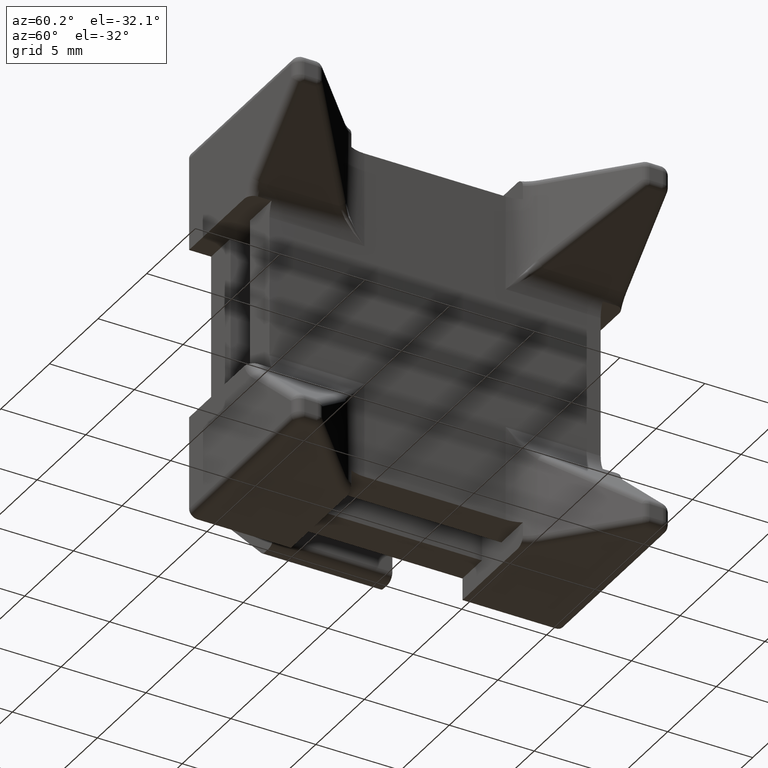
[diagram: clean part render]
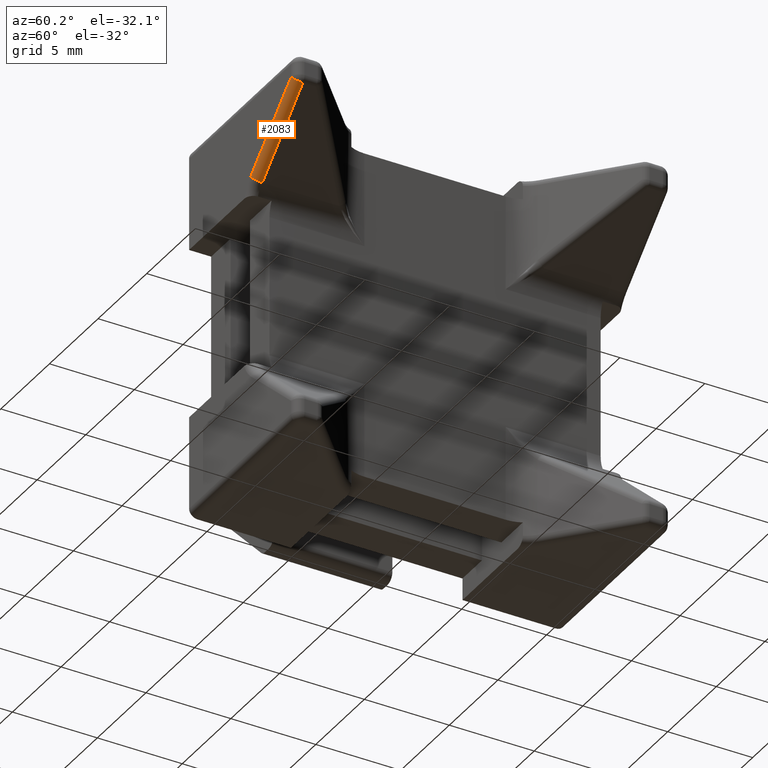
[diagram: same view with one face highlighted and labeled with its STEP entity id]
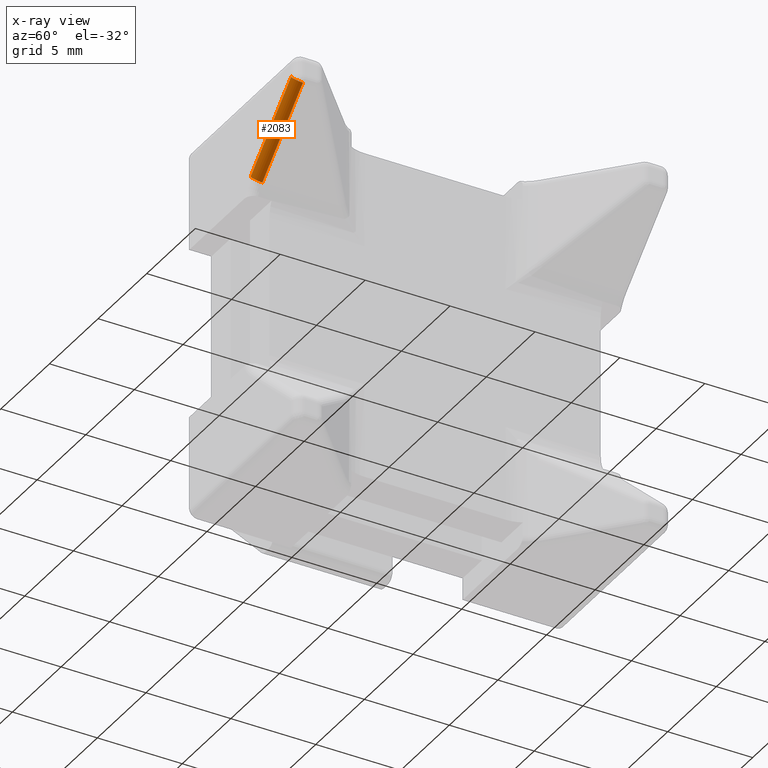
[diagram: x-ray of the same camera — body ghosted, the highlighted face saturated]
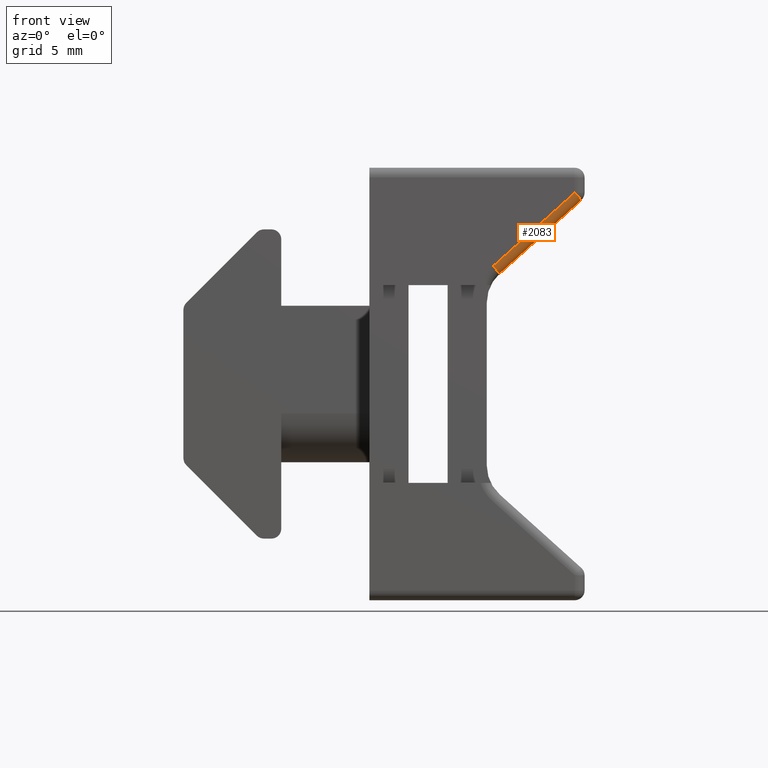
[diagram: same view with one face highlighted and labeled with its STEP entity id]
A machine part, auxiliary view. The second image highlights one B-rep face of the part: STEP entity #2083.
The next image is the same camera in x-ray: the body ghosted, the highlighted face saturated — about 0% of this face is hidden behind the body in this view.
A second angle (front view) of the same face is appended — the face is thin or edge-on in the first view.
In plain terms, the highlighted cylindrical surface (edge-blend (fillet) strip) has radius 0.5 mm, axis along (-0.7433, 0, -0.669).
Its self-contained STEP definition (entity closure, byte-faithful):
#95=LINE('',#3165,#297);
#96=LINE('',#3166,#298);
#297=VECTOR('',#2495,10.);
#298=VECTOR('',#2496,10.);
#499=CYLINDRICAL_SURFACE('',#2242,0.5);
#550=FACE_OUTER_BOUND('',#677,.T.);
#677=EDGE_LOOP('',(#1429,#1430,#1431,#1432));
#809=CIRCLE('',#2240,0.499999999999999);
#811=CIRCLE('',#2243,0.5);
#912=VERTEX_POINT('',#3155);
#914=VERTEX_POINT('',#3158);
#915=VERTEX_POINT('',#3162);
#916=VERTEX_POINT('',#3163);
#1105=EDGE_CURVE('',#914,#912,#809,.F.);
#1107=EDGE_CURVE('',#915,#916,#811,.T.);
#1108=EDGE_CURVE('',#916,#914,#95,.T.);
#1109=EDGE_CURVE('',#912,#915,#96,.T.);
#1429=ORIENTED_EDGE('',*,*,#1107,.T.);
#1430=ORIENTED_EDGE('',*,*,#1108,.T.);
#1431=ORIENTED_EDGE('',*,*,#1105,.T.);
#1432=ORIENTED_EDGE('',*,*,#1109,.T.);
#2083=ADVANCED_FACE('',(#550),#499,.T.);
#2240=AXIS2_PLACEMENT_3D('',#3159,#2487,#2488);
#2242=AXIS2_PLACEMENT_3D('',#3161,#2491,#2492);
#2243=AXIS2_PLACEMENT_3D('',#3164,#2493,#2494);
#2487=DIRECTION('center_axis',(0.743294146247166,0.,0.66896473162245));
#2488=DIRECTION('ref_axis',(0.66896473162245,0.,-0.743294146247166));
#2491=DIRECTION('center_axis',(-0.743294146247166,0.,-0.66896473162245));
#2492=DIRECTION('ref_axis',(0.473029498104871,-0.70710678118655,-0.525588331227635));
#2493=DIRECTION('center_axis',(0.743294146247164,0.,0.668964731622452));
#2494=DIRECTION('ref_axis',(0.,-1.,0.));
#2495=DIRECTION('',(0.743294146247166,0.,0.66896473162245));
#2496=DIRECTION('',(-0.743294146247166,0.,-0.66896473162245));
#3155=CARTESIAN_POINT('',(10.5,-11.05,19.5226812023537));
#3158=CARTESIAN_POINT('',(10.8344823658112,-10.55,19.1510341292301));
#3159=CARTESIAN_POINT('Origin',(10.5,-10.55,19.5226812023537));
#3161=CARTESIAN_POINT('Origin',(8.4072303413711,-10.55,17.6391885095877));
#3162=CARTESIAN_POINT('',(6.32758817094388,-11.05,15.7675105562032));
#3163=CARTESIAN_POINT('',(6.6620705367551,-10.55,15.3958634830796));
#3164=CARTESIAN_POINT('Origin',(6.32758817094388,-10.55,15.7675105562032));
#3165=CARTESIAN_POINT('',(8.74171270718232,-10.55,17.2675414364641));
#3166=CARTESIAN_POINT('',(8.4072303413711,-11.05,17.6391885095877));